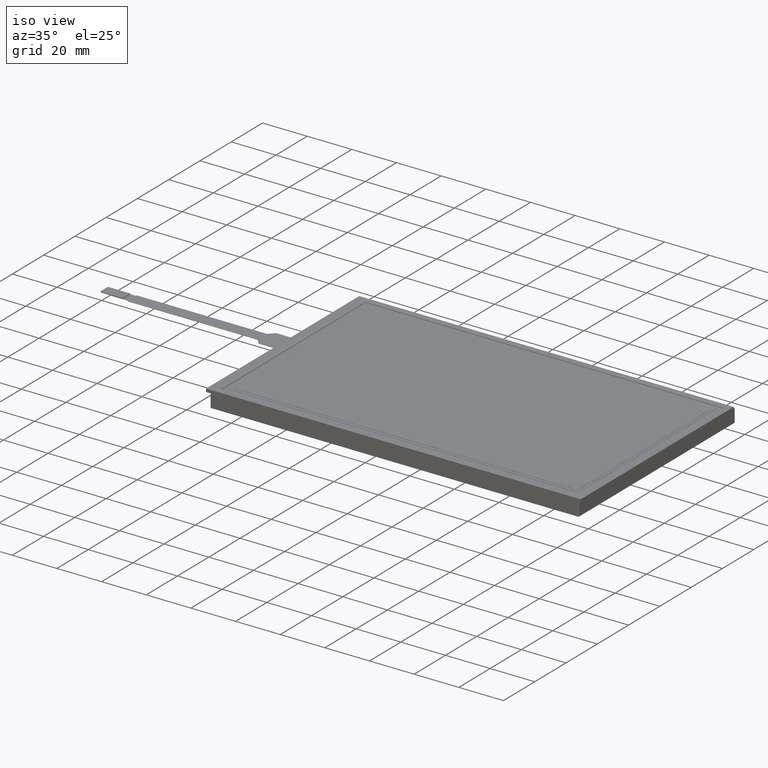
[diagram: clean part render]
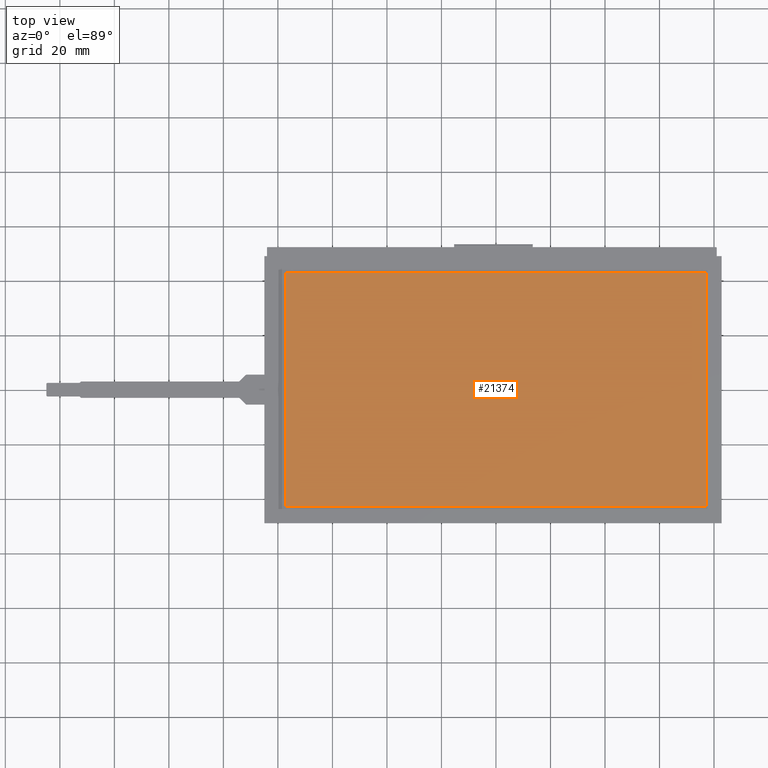
[diagram: tour spotlight — one face highlighted and labeled with its STEP entity id]
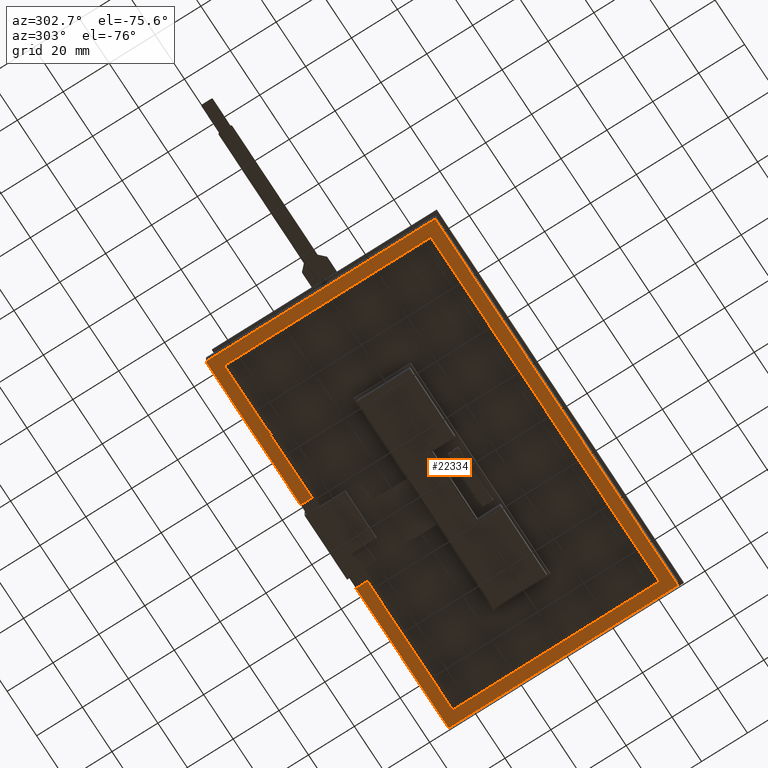
[diagram: tour spotlight — one face highlighted and labeled with its STEP entity id]
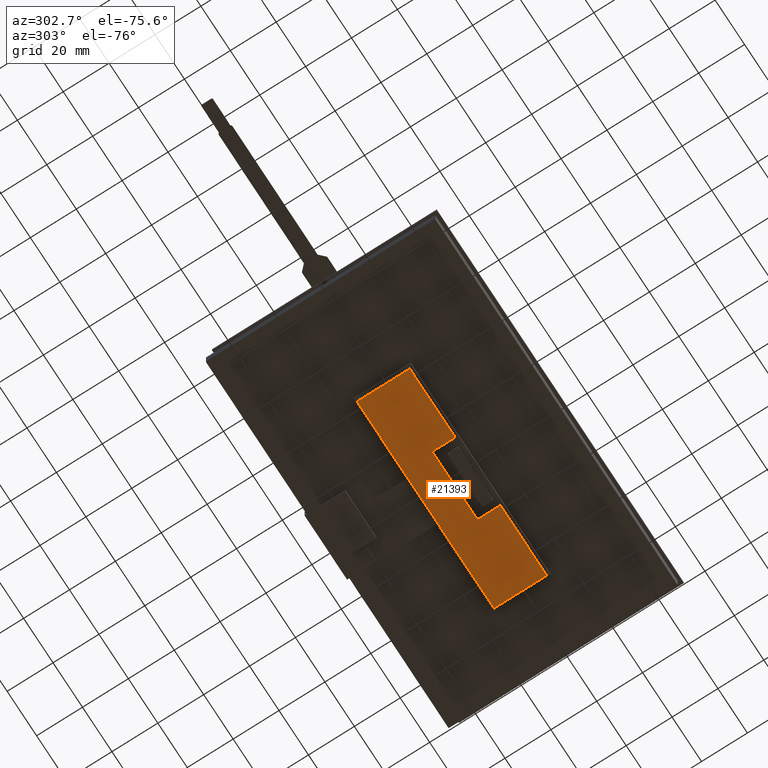
[diagram: tour spotlight — one face highlighted and labeled with its STEP entity id]
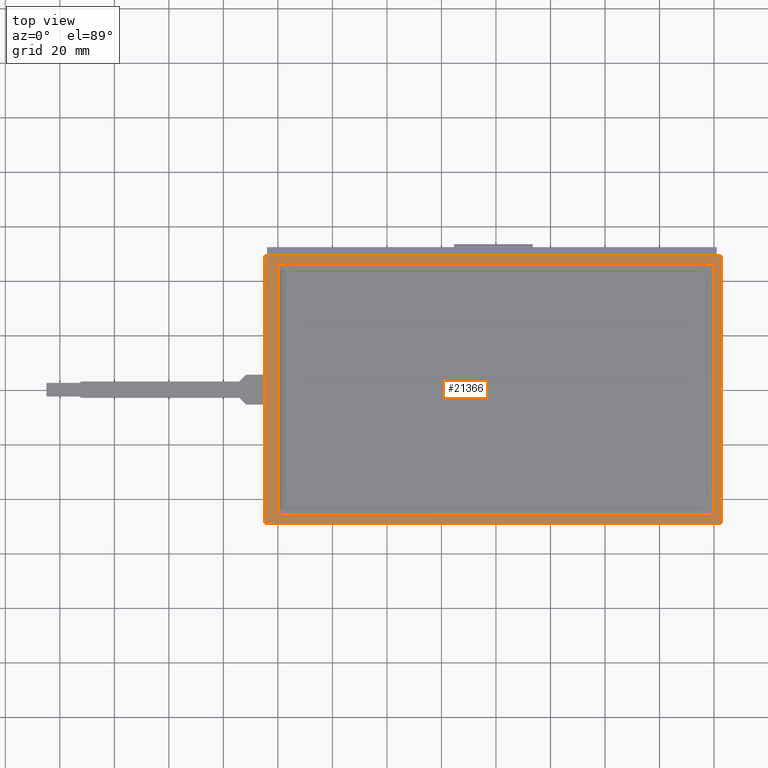
[diagram: tour spotlight — one face highlighted and labeled with its STEP entity id]
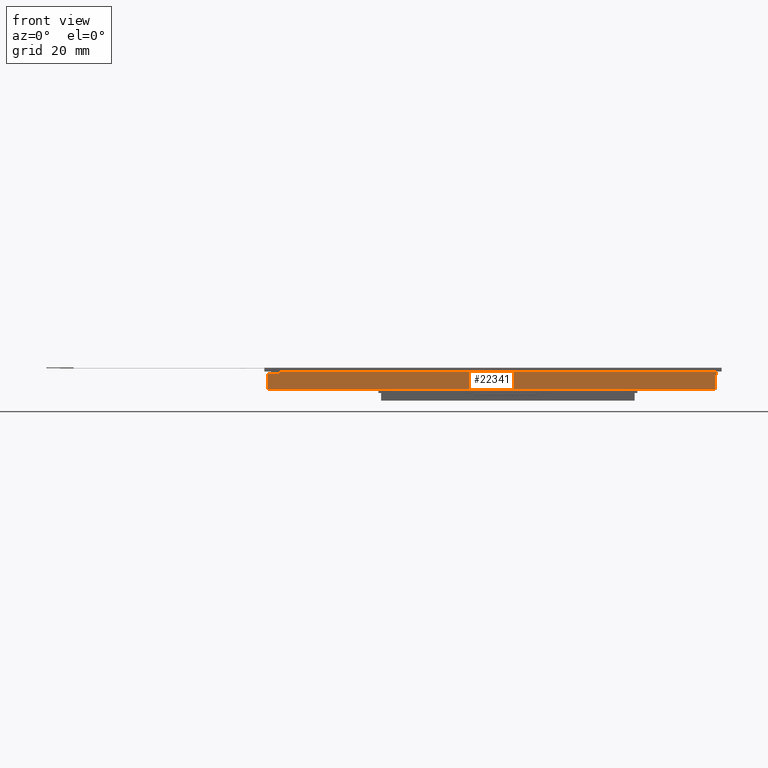
[diagram: tour spotlight — one face highlighted and labeled with its STEP entity id]
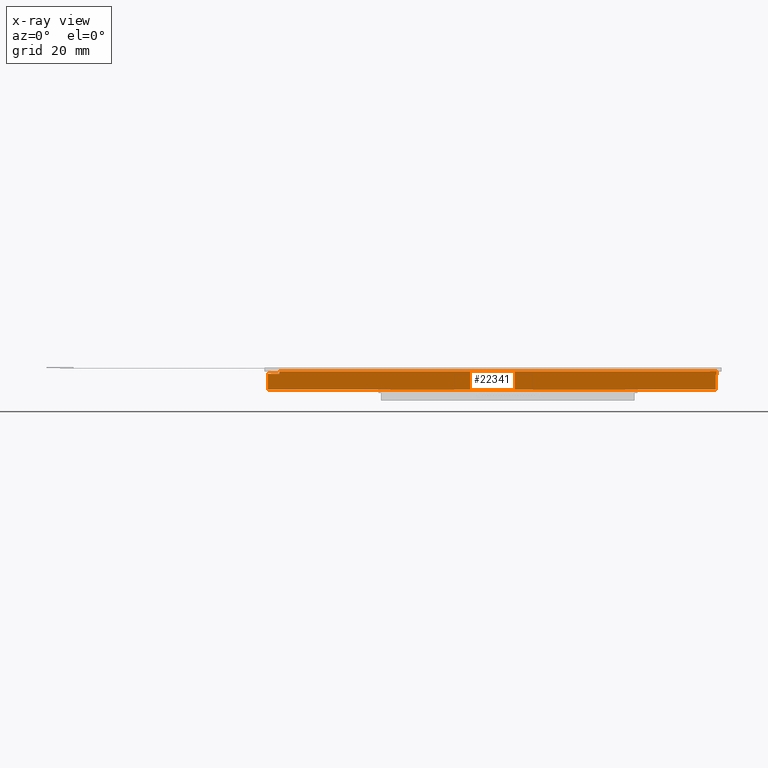
[diagram: x-ray of the same camera — body ghosted, this tour face saturated]
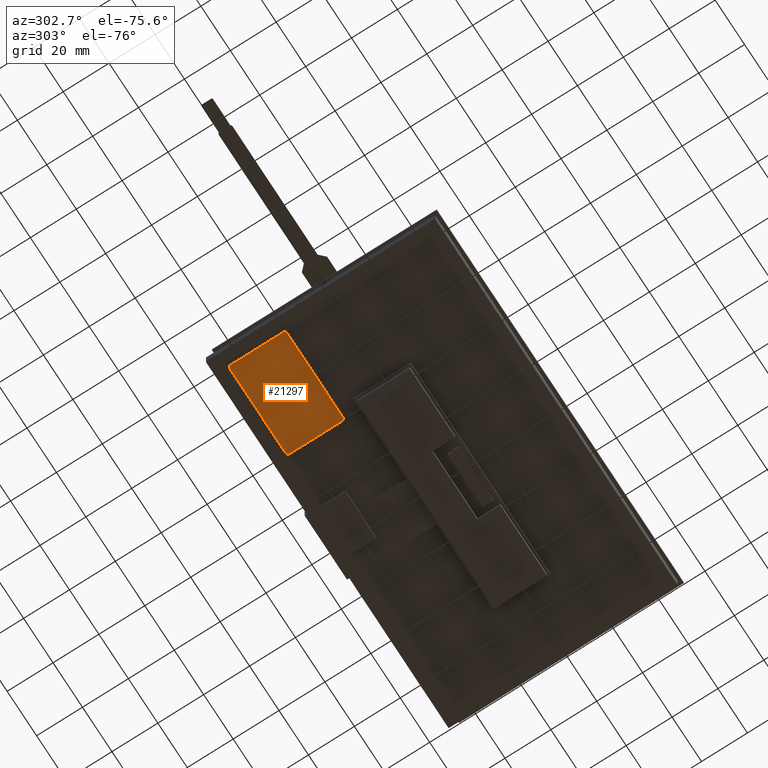
[diagram: tour spotlight — one face highlighted and labeled with its STEP entity id]
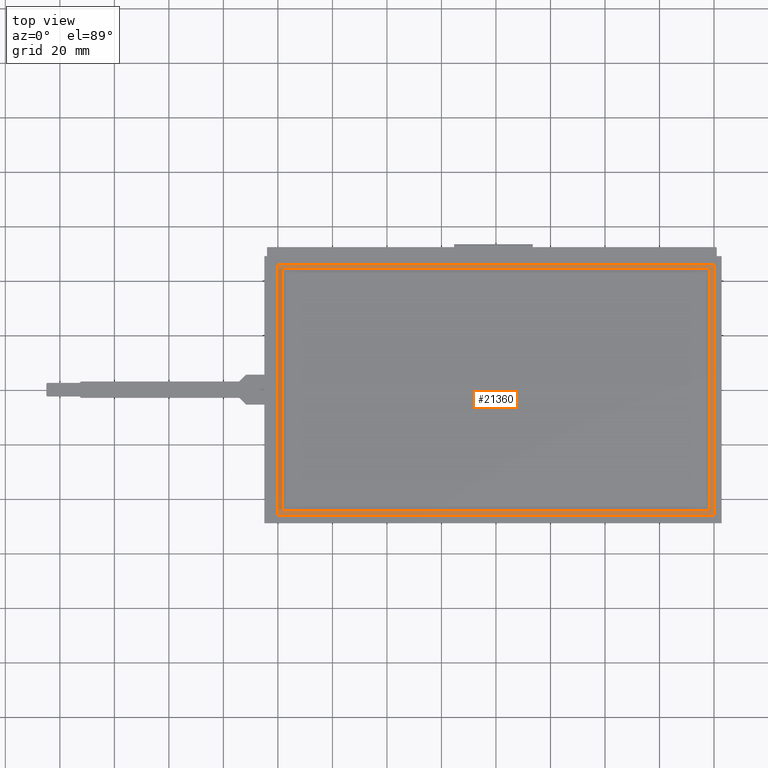
[diagram: tour spotlight — one face highlighted and labeled with its STEP entity id]
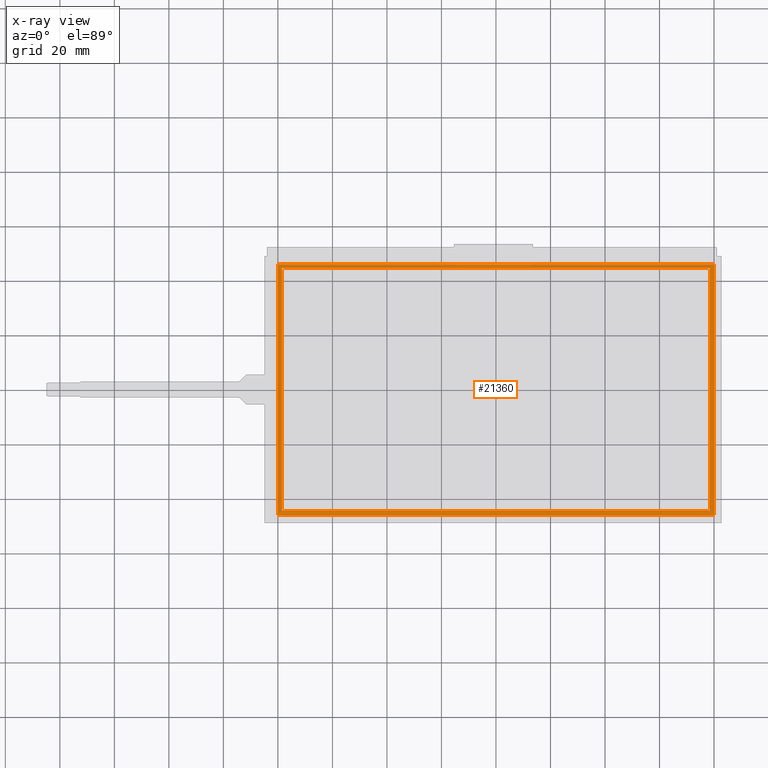
[diagram: x-ray of the same camera — body ghosted, this tour face saturated]
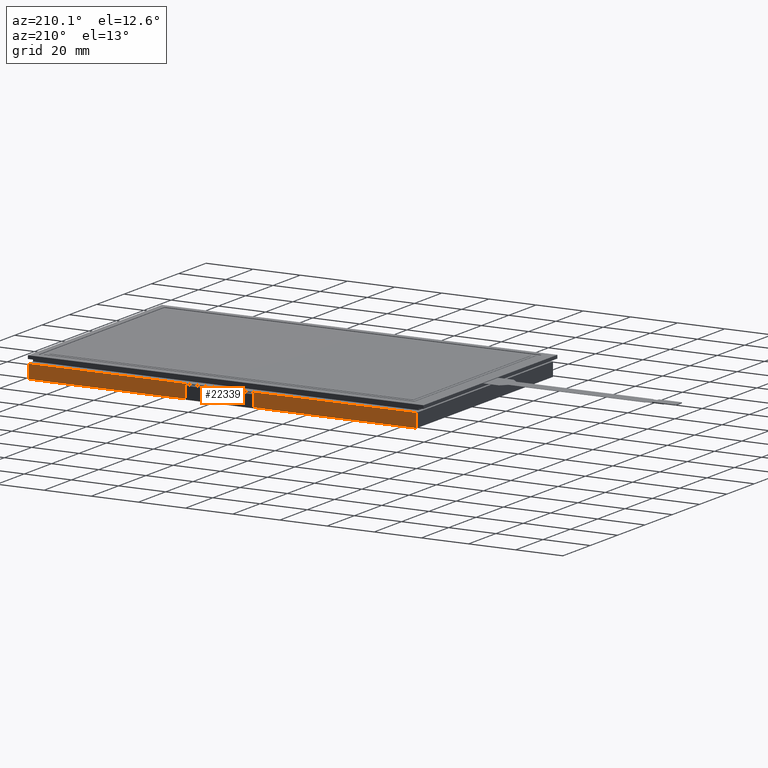
[diagram: tour spotlight — one face highlighted and labeled with its STEP entity id]
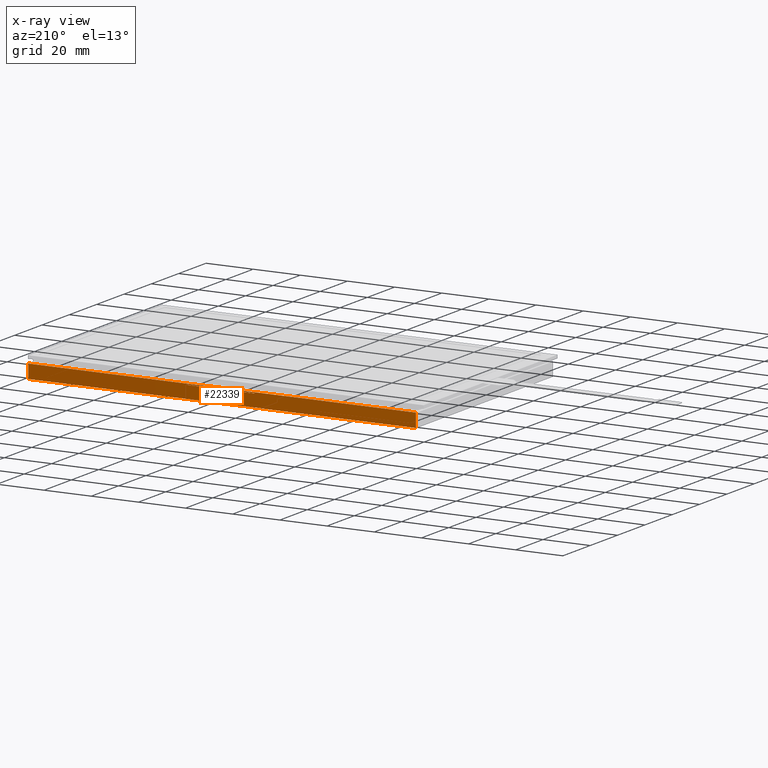
[diagram: x-ray of the same camera — body ghosted, this tour face saturated]
A machine part: a face-by-face anatomy tour. The part has 1136 B-rep faces; the first image is the clean iso view, then the 8 largest visible faces are spotlighted one at a time (largest first), each with its STEP entity span.

Face 1 — top view, entity #21374. In plain terms, the highlighted planar face has unit normal (0, 0, 1).
Definition (entity closure, byte-faithful):
#894=FACE_OUTER_BOUND('',#2040,.T.);
#2040=EDGE_LOOP('',(#14514,#14515,#14516,#14517));
#3393=LINE('',#30537,#6137);
#3397=LINE('',#30545,#6141);
#3400=LINE('',#30551,#6144);
#3403=LINE('',#30556,#6147);
#6137=VECTOR('',#24530,10.);
#6141=VECTOR('',#24536,10.);
#6144=VECTOR('',#24541,10.);
#6147=VECTOR('',#24546,10.);
#8823=VERTEX_POINT('',#30535);
#8824=VERTEX_POINT('',#30536);
#8827=VERTEX_POINT('',#30544);
#8829=VERTEX_POINT('',#30550);
#11006=EDGE_CURVE('',#8823,#8824,#3393,.T.);
#11010=EDGE_CURVE('',#8827,#8823,#3397,.T.);
#11013=EDGE_CURVE('',#8829,#8827,#3400,.T.);
#11016=EDGE_CURVE('',#8824,#8829,#3403,.T.);
#14514=ORIENTED_EDGE('',*,*,#11006,.T.);
#14515=ORIENTED_EDGE('',*,*,#11016,.T.);
#14516=ORIENTED_EDGE('',*,*,#11013,.T.);
#14517=ORIENTED_EDGE('',*,*,#11010,.T.);
#20442=PLANE('',#22564);
#21374=ADVANCED_FACE('',(#894),#20442,.T.);
#22564=AXIS2_PLACEMENT_3D('',#30584,#24578,#24579);
#24530=DIRECTION('',(1.,-1.20708053394536E-49,0.));
#24536=DIRECTION('',(-1.20708053394536E-49,-1.,0.));
#24541=DIRECTION('',(-1.,1.20708053394536E-49,0.));
#24546=DIRECTION('',(1.20708053394536E-49,1.,0.));
#24578=DIRECTION('center_axis',(0.,0.,1.));
#24579=DIRECTION('ref_axis',(1.,-1.20708053394536E-49,0.));
#30535=CARTESIAN_POINT('',(-77.1,-42.96,0.));
#30536=CARTESIAN_POINT('',(77.1,-42.96,0.));
#30537=CARTESIAN_POINT('',(-39.0875,-42.96,0.));
#30544=CARTESIAN_POINT('',(-77.1,42.96,0.));
#30545=CARTESIAN_POINT('',(-77.1,21.48,0.));
#30550=CARTESIAN_POINT('',(77.1,42.96,0.));
#30551=CARTESIAN_POINT('',(38.0125,42.96,0.));
#30556=CARTESIAN_POINT('',(77.1,-21.48,0.));
#30584=CARTESIAN_POINT('Origin',(-1.07499999999999,-4.44089209850063E-15,
0.));

Face 2 — auxiliary view, entity #22334. In plain terms, the highlighted planar face has unit normal (0, -0, -1).
Definition (entity closure, byte-faithful):
#143=CIRCLE('',#22566,0.330000000000005);
#470=CIRCLE('',#23952,0.33);
#471=CIRCLE('',#23953,0.329999999999997);
#472=CIRCLE('',#23954,0.329999999999997);
#1854=FACE_OUTER_BOUND('',#3066,.T.);
#3066=EDGE_LOOP('',(#19966,#19967,#19968,#19969,#19970,#19971,#19972,#19973,
#19974,#19975,#19976,#19977,#19978,#19979,#19980,#19981));
#3257=LINE('',#30220,#6001);
#5710=LINE('',#36031,#8454);
#5713=LINE('',#36037,#8457);
#5716=LINE('',#36043,#8460);
#5719=LINE('',#36049,#8463);
#5722=LINE('',#36055,#8466);
#5725=LINE('',#36061,#8469);
#5728=LINE('',#36067,#8472);
#5730=LINE('',#36071,#8474);
#5731=LINE('',#36073,#8475);
#5732=LINE('',#36076,#8476);
#5733=LINE('',#36080,#8477);
#6001=VECTOR('',#24244,10.);
#8454=VECTOR('',#29633,10.);
#8457=VECTOR('',#29638,10.);
#8460=VECTOR('',#29643,10.);
#8463=VECTOR('',#29648,10.);
#8466=VECTOR('',#29653,10.);
#8469=VECTOR('',#29658,10.);
#8472=VECTOR('',#29663,10.);
#8474=VECTOR('',#29667,10.);
#8475=VECTOR('',#29668,10.);
#8476=VECTOR('',#29671,10.);
#8477=VECTOR('',#29674,10.);
#8717=VERTEX_POINT('',#30217);
#8718=VERTEX_POINT('',#30219);
#8836=VERTEX_POINT('',#30586);
#10607=VERTEX_POINT('',#36028);
#10608=VERTEX_POINT('',#36030);
#10610=VERTEX_POINT('',#36036);
#10612=VERTEX_POINT('',#36042);
#10614=VERTEX_POINT('',#36048);
#10616=VERTEX_POINT('',#36054);
#10618=VERTEX_POINT('',#36060);
#10620=VERTEX_POINT('',#36066);
#10621=VERTEX_POINT('',#36070);
#10622=VERTEX_POINT('',#36072);
#10623=VERTEX_POINT('',#36075);
#10624=VERTEX_POINT('',#36077);
#10625=VERTEX_POINT('',#36079);
#10849=EDGE_CURVE('',#8718,#8717,#3257,.T.);
#11031=EDGE_CURVE('',#8717,#8836,#143,.T.);
#13750=EDGE_CURVE('',#10608,#10607,#5710,.T.);
#13753=EDGE_CURVE('',#10610,#10608,#5713,.T.);
#13756=EDGE_CURVE('',#10612,#10610,#5716,.T.);
#13759=EDGE_CURVE('',#10614,#10612,#5719,.T.);
#13762=EDGE_CURVE('',#10616,#10614,#5722,.T.);
#13765=EDGE_CURVE('',#10618,#10616,#5725,.T.);
#13768=EDGE_CURVE('',#10620,#10618,#5728,.T.);
#13770=EDGE_CURVE('',#10621,#10620,#5730,.T.);
#13771=EDGE_CURVE('',#10607,#10622,#5731,.T.);
#13772=EDGE_CURVE('',#10622,#8718,#470,.T.);
#13773=EDGE_CURVE('',#8836,#10623,#5732,.T.);
#13774=EDGE_CURVE('',#10623,#10624,#471,.T.);
#13775=EDGE_CURVE('',#10624,#10625,#5733,.T.);
#13776=EDGE_CURVE('',#10625,#10621,#472,.T.);
#19966=ORIENTED_EDGE('',*,*,#13770,.T.);
#19967=ORIENTED_EDGE('',*,*,#13768,.T.);
#19968=ORIENTED_EDGE('',*,*,#13765,.T.);
#19969=ORIENTED_EDGE('',*,*,#13762,.T.);
#19970=ORIENTED_EDGE('',*,*,#13759,.T.);
#19971=ORIENTED_EDGE('',*,*,#13756,.T.);
#19972=ORIENTED_EDGE('',*,*,#13753,.T.);
#19973=ORIENTED_EDGE('',*,*,#13750,.T.);
#19974=ORIENTED_EDGE('',*,*,#13771,.T.);
#19975=ORIENTED_EDGE('',*,*,#13772,.T.);
#19976=ORIENTED_EDGE('',*,*,#10849,.T.);
#19977=ORIENTED_EDGE('',*,*,#11031,.T.);
#19978=ORIENTED_EDGE('',*,*,#13773,.T.);
#19979=ORIENTED_EDGE('',*,*,#13774,.T.);
#19980=ORIENTED_EDGE('',*,*,#13775,.T.);
#19981=ORIENTED_EDGE('',*,*,#13776,.T.);
#21201=PLANE('',#23951);
#22334=ADVANCED_FACE('',(#1854),#21201,.T.);
#22566=AXIS2_PLACEMENT_3D('',#30588,#24583,#24584);
#23951=AXIS2_PLACEMENT_3D('',#36069,#29665,#29666);
#23952=AXIS2_PLACEMENT_3D('',#36074,#29669,#29670);
#23953=AXIS2_PLACEMENT_3D('',#36078,#29672,#29673);
#23954=AXIS2_PLACEMENT_3D('',#36081,#29675,#29676);
#24244=DIRECTION('',(-9.09895546683146E-48,-1.,2.46519032881566E-32));
#24583=DIRECTION('center_axis',(0.,-2.46519032881566E-32,-1.));
#24584=DIRECTION('ref_axis',(1.,-9.09895546683146E-48,2.24306570191573E-79));
#29633=DIRECTION('',(9.09895546683146E-48,1.,-2.46519032881566E-32));
#29638=DIRECTION('',(-1.,9.09895546683146E-48,-2.24306570191573E-79));
#29643=DIRECTION('',(9.09895546683146E-48,1.,-2.46519032881566E-32));
#29648=DIRECTION('',(1.,-9.09895546683146E-48,2.24306570191573E-79));
#29653=DIRECTION('',(-9.09895546683146E-48,-1.,2.46519032881566E-32));
#29658=DIRECTION('',(-1.,9.09895546683146E-48,-2.24306570191573E-79));
#29663=DIRECTION('',(-9.09895546683146E-48,-1.,2.46519032881566E-32));
#29665=DIRECTION('center_axis',(0.,-2.46519032881566E-32,-1.));
#29666=DIRECTION('ref_axis',(1.,-9.09895546683146E-48,2.24306570191573E-79));
#29667=DIRECTION('',(1.,-9.09895546683146E-48,2.24306570191573E-79));
#29668=DIRECTION('',(1.,-9.09895546683146E-48,2.24306570191573E-79));
#29669=DIRECTION('center_axis',(0.,-2.46519032881566E-32,-1.));
#29670=DIRECTION('ref_axis',(9.09895546683146E-48,1.,-2.46519032881566E-32));
#29671=DIRECTION('',(-1.,9.09895546683146E-48,-2.24306570191573E-79));
#29672=DIRECTION('center_axis',(0.,-2.46519032881566E-32,-1.));
#29673=DIRECTION('ref_axis',(-1.07657990266678E-13,-1.,2.46519032881566E-32));
#29674=DIRECTION('',(9.09895546683146E-48,1.,-2.46519032881566E-32));
#29675=DIRECTION('center_axis',(0.,-2.46519032881566E-32,-1.));
#29676=DIRECTION('ref_axis',(-1.,9.09895546683146E-48,-2.24306570191573E-79));
#30217=CARTESIAN_POINT('',(80.985,-47.31,-8.08000000000004));
#30219=CARTESIAN_POINT('',(80.985,52.03,-8.08000000000004));
#30220=CARTESIAN_POINT('',(80.985,52.03,-8.08000000000004));
#30586=CARTESIAN_POINT('',(80.655,-47.64,-8.08000000000004));
#30588=CARTESIAN_POINT('Origin',(80.655,-47.31,-8.08000000000004));
#36028=CARTESIAN_POINT('',(18.06,52.36,-8.08000000000004));
#36030=CARTESIAN_POINT('',(18.06,47.36,-8.08000000000004));
#36031=CARTESIAN_POINT('',(18.06,47.36,-8.08000000000004));
#36036=CARTESIAN_POINT('',(75.9850000000209,47.36,-8.08000000000004));
#36037=CARTESIAN_POINT('',(75.9850000000209,47.36,-8.08000000000004));
#36042=CARTESIAN_POINT('',(75.9850000000209,-42.64,-8.08000000000004));
#36043=CARTESIAN_POINT('',(75.9850000000209,-42.64,-8.08000000000004));
#36048=CARTESIAN_POINT('',(-79.0149999999791,-42.64,-8.08000000000004));
#36049=CARTESIAN_POINT('',(-79.0149999999791,-42.64,-8.08000000000004));
#36054=CARTESIAN_POINT('',(-79.0149999999791,47.36,-8.08000000000004));
#36055=CARTESIAN_POINT('',(-79.0149999999791,47.36,-8.08000000000004));
#36060=CARTESIAN_POINT('',(-19.52,47.36,-8.08000000000004));
#36061=CARTESIAN_POINT('',(75.9850000000209,47.36,-8.08000000000004));
#36066=CARTESIAN_POINT('',(-19.52,52.36,-8.08000000000004));
#36067=CARTESIAN_POINT('',(-19.52,52.36,-8.08000000000004));
#36069=CARTESIAN_POINT('Origin',(-1.51499999999999,2.36,-8.08000000000004));
#36070=CARTESIAN_POINT('',(-83.685,52.36,-8.08000000000004));
#36071=CARTESIAN_POINT('',(-83.685,52.36,-8.08000000000004));
#36072=CARTESIAN_POINT('',(80.655,52.36,-8.08000000000004));
#36073=CARTESIAN_POINT('',(-83.685,52.36,-8.08000000000004));
#36074=CARTESIAN_POINT('Origin',(80.655,52.03,-8.08000000000004));
#36075=CARTESIAN_POINT('',(-83.685,-47.64,-8.08000000000004));
#36076=CARTESIAN_POINT('',(80.655,-47.64,-8.08000000000004));
#36077=CARTESIAN_POINT('',(-84.015,-47.31,-8.08000000000004));
#36078=CARTESIAN_POINT('Origin',(-83.685,-47.31,-8.08000000000004));
#36079=CARTESIAN_POINT('',(-84.015,52.03,-8.08000000000004));
#36080=CARTESIAN_POINT('',(-84.015,-47.31,-8.08000000000004));
#36081=CARTESIAN_POINT('Origin',(-83.685,52.03,-8.08000000000004));

Face 3 — auxiliary view, entity #21393. In plain terms, the highlighted planar face has unit normal (0, 0, 1).
Definition (entity closure, byte-faithful):
#913=FACE_OUTER_BOUND('',#2059,.T.);
#2059=EDGE_LOOP('',(#14598,#14599,#14600,#14601,#14602,#14603,#14604,#14605));
#3436=LINE('',#30645,#6180);
#3441=LINE('',#30655,#6185);
#3447=LINE('',#30666,#6191);
#3450=LINE('',#30672,#6194);
#3453=LINE('',#30678,#6197);
#3456=LINE('',#30684,#6200);
#3459=LINE('',#30690,#6203);
#3461=LINE('',#30693,#6205);
#6180=VECTOR('',#24639,1000.);
#6185=VECTOR('',#24646,1000.);
#6191=VECTOR('',#24654,1000.);
#6194=VECTOR('',#24659,1000.);
#6197=VECTOR('',#24664,1000.);
#6200=VECTOR('',#24669,1000.);
#6203=VECTOR('',#24674,1000.);
#6205=VECTOR('',#24678,1000.);
#8855=VERTEX_POINT('',#30642);
#8856=VERTEX_POINT('',#30644);
#8860=VERTEX_POINT('',#30653);
#8864=VERTEX_POINT('',#30664);
#8866=VERTEX_POINT('',#30670);
#8868=VERTEX_POINT('',#30676);
#8870=VERTEX_POINT('',#30682);
#8872=VERTEX_POINT('',#30688);
#11058=EDGE_CURVE('',#8856,#8855,#3436,.T.);
#11063=EDGE_CURVE('',#8855,#8860,#3441,.T.);
#11069=EDGE_CURVE('',#8860,#8864,#3447,.T.);
#11072=EDGE_CURVE('',#8864,#8866,#3450,.T.);
#11075=EDGE_CURVE('',#8866,#8868,#3453,.T.);
#11078=EDGE_CURVE('',#8868,#8870,#3456,.T.);
#11081=EDGE_CURVE('',#8870,#8872,#3459,.T.);
#11083=EDGE_CURVE('',#8872,#8856,#3461,.T.);
#14598=ORIENTED_EDGE('',*,*,#11058,.T.);
#14599=ORIENTED_EDGE('',*,*,#11063,.T.);
#14600=ORIENTED_EDGE('',*,*,#11069,.T.);
#14601=ORIENTED_EDGE('',*,*,#11072,.T.);
#14602=ORIENTED_EDGE('',*,*,#11075,.T.);
#14603=ORIENTED_EDGE('',*,*,#11078,.T.);
#14604=ORIENTED_EDGE('',*,*,#11081,.T.);
#14605=ORIENTED_EDGE('',*,*,#11083,.T.);
#20456=PLANE('',#22592);
#21393=ADVANCED_FACE('',(#913),#20456,.F.);
#22592=AXIS2_PLACEMENT_3D('',#30694,#24679,#24680);
#24639=DIRECTION('',(9.09895546683146E-48,1.,-2.46519032881566E-32));
#24646=DIRECTION('',(1.,-4.66323515047529E-18,1.14957621939449E-49));
#24654=DIRECTION('',(-1.88556899562696E-17,-1.,2.46519032881566E-32));
#24659=DIRECTION('',(-1.,-1.10176149633332E-16,2.71605178542238E-48));
#24664=DIRECTION('',(9.09895546683146E-48,1.,-2.46519032881566E-32));
#24669=DIRECTION('',(-1.,9.09895546683146E-48,-2.24306570191573E-79));
#24674=DIRECTION('',(-9.09895546683146E-48,-1.,2.46519032881566E-32));
#24678=DIRECTION('',(-1.,1.12607820576231E-16,-2.77599710233534E-48));
#24679=DIRECTION('center_axis',(0.,2.46519032881566E-32,1.));
#24680=DIRECTION('ref_axis',(-1.,9.09895546683146E-48,-2.24306570191573E-79));
#30642=CARTESIAN_POINT('',(-42.125,13.27,-12.08));
#30644=CARTESIAN_POINT('',(-42.125,-9.73000000000003,-12.08));
#30645=CARTESIAN_POINT('',(-42.125,13.27,-12.08));
#30653=CARTESIAN_POINT('',(50.875,13.27,-12.08));
#30655=CARTESIAN_POINT('',(50.875,13.27,-12.08));
#30664=CARTESIAN_POINT('',(50.875,-9.73000000000003,-12.08));
#30666=CARTESIAN_POINT('',(50.875,-9.73000000000003,-12.08));
#30670=CARTESIAN_POINT('',(19.3850000000002,-9.73000000000003,-12.08));
#30672=CARTESIAN_POINT('',(19.3850000000002,-9.73000000000003,-12.08));
#30676=CARTESIAN_POINT('',(19.3850000000002,0.269999999999998,-12.08));
#30678=CARTESIAN_POINT('',(19.3850000000002,-9.73000000000003,-12.08));
#30682=CARTESIAN_POINT('',(-11.3150000000005,0.269999999999998,-12.08));
#30684=CARTESIAN_POINT('',(-11.3150000000005,0.269999999999998,-12.08));
#30688=CARTESIAN_POINT('',(-11.3150000000005,-9.73000000000003,-12.08));
#30690=CARTESIAN_POINT('',(-11.3150000000005,-9.73000000000003,-12.08));
#30693=CARTESIAN_POINT('',(-42.125,-9.73000000000003,-12.08));
#30694=CARTESIAN_POINT('Origin',(51.875,14.27,-12.08));

Face 4 — top view, entity #21366. In plain terms, the highlighted planar face has unit normal (0, 0, 1).
Definition (entity closure, byte-faithful):
#703=FACE_BOUND('',#2031,.T.);
#886=FACE_OUTER_BOUND('',#2030,.T.);
#2030=EDGE_LOOP('',(#14458,#14459,#14460,#14461));
#2031=EDGE_LOOP('',(#14462,#14463,#14464,#14465));
#3381=LINE('',#30512,#6125);
#3385=LINE('',#30520,#6129);
#3388=LINE('',#30526,#6132);
#3391=LINE('',#30531,#6135);
#3405=LINE('',#30562,#6149);
#3406=LINE('',#30564,#6150);
#3407=LINE('',#30566,#6151);
#3408=LINE('',#30567,#6152);
#6125=VECTOR('',#24508,10.);
#6129=VECTOR('',#24514,10.);
#6132=VECTOR('',#24519,10.);
#6135=VECTOR('',#24524,10.);
#6149=VECTOR('',#24552,10.);
#6150=VECTOR('',#24553,10.);
#6151=VECTOR('',#24554,10.);
#6152=VECTOR('',#24555,10.);
#8815=VERTEX_POINT('',#30510);
#8816=VERTEX_POINT('',#30511);
#8819=VERTEX_POINT('',#30519);
#8821=VERTEX_POINT('',#30525);
#8831=VERTEX_POINT('',#30560);
#8832=VERTEX_POINT('',#30561);
#8833=VERTEX_POINT('',#30563);
#8834=VERTEX_POINT('',#30565);
#10994=EDGE_CURVE('',#8815,#8816,#3381,.T.);
#10998=EDGE_CURVE('',#8819,#8815,#3385,.T.);
#11001=EDGE_CURVE('',#8821,#8819,#3388,.T.);
#11004=EDGE_CURVE('',#8816,#8821,#3391,.T.);
#11018=EDGE_CURVE('',#8831,#8832,#3405,.T.);
#11019=EDGE_CURVE('',#8832,#8833,#3406,.T.);
#11020=EDGE_CURVE('',#8833,#8834,#3407,.T.);
#11021=EDGE_CURVE('',#8834,#8831,#3408,.T.);
#14458=ORIENTED_EDGE('',*,*,#11018,.T.);
#14459=ORIENTED_EDGE('',*,*,#11019,.T.);
#14460=ORIENTED_EDGE('',*,*,#11020,.T.);
#14461=ORIENTED_EDGE('',*,*,#11021,.T.);
#14462=ORIENTED_EDGE('',*,*,#10994,.T.);
#14463=ORIENTED_EDGE('',*,*,#11004,.T.);
#14464=ORIENTED_EDGE('',*,*,#11001,.T.);
#14465=ORIENTED_EDGE('',*,*,#10998,.T.);
#20434=PLANE('',#22556);
#21366=ADVANCED_FACE('',(#886,#703),#20434,.T.);
#22556=AXIS2_PLACEMENT_3D('',#30559,#24550,#24551);
#24508=DIRECTION('',(1.20708053394536E-49,1.,0.));
#24514=DIRECTION('',(-1.,-1.11022302462516E-16,0.));
#24519=DIRECTION('',(-1.20708053394536E-49,-1.,0.));
#24524=DIRECTION('',(1.,-1.20708053394536E-49,0.));
#24550=DIRECTION('center_axis',(0.,0.,1.));
#24551=DIRECTION('ref_axis',(1.,-1.20708053394536E-49,0.));
#24552=DIRECTION('',(-1.,1.20708053394536E-49,0.));
#24553=DIRECTION('',(-1.20708053394536E-49,-1.,0.));
#24554=DIRECTION('',(1.,1.05893105180343E-16,0.));
#24555=DIRECTION('',(1.81260901979617E-16,1.,0.));
#30510=CARTESIAN_POINT('',(-80.,-46.,0.));
#30511=CARTESIAN_POINT('',(-80.,46.,0.));
#30512=CARTESIAN_POINT('',(-80.,-23.,0.));
#30519=CARTESIAN_POINT('',(80.,-46.,0.));
#30520=CARTESIAN_POINT('',(39.4625,-46.,0.));
#30525=CARTESIAN_POINT('',(80.,46.,0.));
#30526=CARTESIAN_POINT('',(80.,23.,0.));
#30531=CARTESIAN_POINT('',(-40.5375,46.,0.));
#30559=CARTESIAN_POINT('Origin',(-1.07499999999999,-4.44089209850063E-15,
0.));
#30560=CARTESIAN_POINT('',(82.8,49.,0.));
#30561=CARTESIAN_POINT('',(-84.95,49.,0.));
#30562=CARTESIAN_POINT('',(82.8,49.,0.));
#30563=CARTESIAN_POINT('',(-84.95,-49.,0.));
#30564=CARTESIAN_POINT('',(-84.95,49.,0.));
#30565=CARTESIAN_POINT('',(82.8,-49.,0.));
#30566=CARTESIAN_POINT('',(-84.95,-49.,0.));
#30567=CARTESIAN_POINT('',(82.8,-49.,0.));

Face 5 — front view, entity #22341. An x-ray twin of the same camera follows (body ghosted, this face saturated) — the face is partly hidden behind the body. In plain terms, the highlighted planar face has unit normal (-0, -1, 0).
Definition (entity closure, byte-faithful):
#1861=FACE_OUTER_BOUND('',#3085,.T.);
#3085=EDGE_LOOP('',(#20086,#20087,#20088,#20089,#20090,#20091,#20092,#20093));
#3251=LINE('',#30208,#5995);
#3254=LINE('',#30214,#5998);
#3265=LINE('',#30235,#6009);
#3266=LINE('',#30239,#6010);
#3417=LINE('',#30587,#6161);
#5732=LINE('',#36076,#8476);
#5784=LINE('',#36185,#8528);
#5790=LINE('',#36201,#8534);
#5995=VECTOR('',#24236,10.);
#5998=VECTOR('',#24241,10.);
#6009=VECTOR('',#24258,10.);
#6010=VECTOR('',#24263,10.);
#6161=VECTOR('',#24582,1000.);
#8476=VECTOR('',#29671,10.);
#8528=VECTOR('',#29733,1000.);
#8534=VECTOR('',#29753,1000.);
#8712=VERTEX_POINT('',#30205);
#8713=VERTEX_POINT('',#30207);
#8715=VERTEX_POINT('',#30213);
#8722=VERTEX_POINT('',#30233);
#8723=VERTEX_POINT('',#30237);
#8836=VERTEX_POINT('',#30586);
#10623=VERTEX_POINT('',#36075);
#10675=VERTEX_POINT('',#36182);
#10843=EDGE_CURVE('',#8712,#8713,#3251,.T.);
#10846=EDGE_CURVE('',#8713,#8715,#3254,.T.);
#10857=EDGE_CURVE('',#8712,#8722,#3265,.T.);
#10859=EDGE_CURVE('',#8715,#8723,#3266,.T.);
#11030=EDGE_CURVE('',#8836,#8723,#3417,.T.);
#13773=EDGE_CURVE('',#8836,#10623,#5732,.T.);
#13828=EDGE_CURVE('',#10623,#10675,#5784,.T.);
#13836=EDGE_CURVE('',#10675,#8722,#5790,.T.);
#20086=ORIENTED_EDGE('',*,*,#13836,.F.);
#20087=ORIENTED_EDGE('',*,*,#13828,.F.);
#20088=ORIENTED_EDGE('',*,*,#13773,.F.);
#20089=ORIENTED_EDGE('',*,*,#11030,.T.);
#20090=ORIENTED_EDGE('',*,*,#10859,.F.);
#20091=ORIENTED_EDGE('',*,*,#10846,.F.);
#20092=ORIENTED_EDGE('',*,*,#10843,.F.);
#20093=ORIENTED_EDGE('',*,*,#10857,.T.);
#21205=PLANE('',#23964);
#22341=ADVANCED_FACE('',(#1861),#21205,.T.);
#23964=AXIS2_PLACEMENT_3D('',#36200,#29751,#29752);
#24236=DIRECTION('',(1.,-9.09895546683141E-48,0.));
#24241=DIRECTION('',(-2.46519032881566E-31,-4.93038065763133E-32,-1.));
#24258=DIRECTION('',(-2.46519032881566E-31,-4.93038065763133E-32,-1.));
#24263=DIRECTION('',(-1.,9.09895546683142E-48,2.46519032881566E-31));
#24582=DIRECTION('',(0.,2.46519032881566E-32,1.));
#29671=DIRECTION('',(-1.,9.09895546683146E-48,-2.24306570191573E-79));
#29733=DIRECTION('',(0.,2.46519032881566E-32,1.));
#29751=DIRECTION('center_axis',(-9.09895546683146E-48,-1.,2.46519032881566E-32));
#29752=DIRECTION('ref_axis',(0.,2.46519032881566E-32,1.));
#29753=DIRECTION('',(1.,-9.09895546683146E-48,2.24306570191573E-79));
#30205=CARTESIAN_POINT('',(-79.515,-47.64,-1.4));
#30207=CARTESIAN_POINT('',(80.985,-47.64,-1.4));
#30208=CARTESIAN_POINT('',(39.955,-47.64,-1.4));
#30213=CARTESIAN_POINT('',(80.985,-47.64,-2.6));
#30214=CARTESIAN_POINT('',(80.985,-47.64,-1.4));
#30233=CARTESIAN_POINT('',(-79.515,-47.64,-2.27000000000001));
#30235=CARTESIAN_POINT('',(-79.515,-47.64,-1.4));
#30237=CARTESIAN_POINT('',(80.655,-47.64,-2.6));
#30239=CARTESIAN_POINT('',(-79.515,-47.64,-2.6));
#30586=CARTESIAN_POINT('',(80.655,-47.64,-8.08000000000004));
#30587=CARTESIAN_POINT('',(80.655,-47.64,-8.02500000000003));
#36075=CARTESIAN_POINT('',(-83.685,-47.64,-8.08000000000004));
#36076=CARTESIAN_POINT('',(80.655,-47.64,-8.08000000000004));
#36182=CARTESIAN_POINT('',(-83.685,-47.64,-2.27000000000001));
#36185=CARTESIAN_POINT('',(-83.685,-47.64,-8.02500000000003));
#36200=CARTESIAN_POINT('Origin',(80.655,-47.64,-8.02500000000003));
#36201=CARTESIAN_POINT('',(80.655,-47.64,-2.27000000000001));

Face 6 — auxiliary view, entity #21297. In plain terms, the highlighted planar face has unit normal (0, -0, -1).
Definition (entity closure, byte-faithful):
#114=CIRCLE('',#22458,1.);
#116=CIRCLE('',#22461,1.);
#117=CIRCLE('',#22462,1.);
#118=CIRCLE('',#22463,1.);
#817=FACE_OUTER_BOUND('',#1958,.T.);
#1958=EDGE_LOOP('',(#14101,#14102,#14103,#14104,#14105,#14106,#14107,#14108));
#3227=LINE('',#30147,#5971);
#3228=LINE('',#30151,#5972);
#3229=LINE('',#30155,#5973);
#3230=LINE('',#30158,#5974);
#5971=VECTOR('',#24182,10.);
#5972=VECTOR('',#24185,10.);
#5973=VECTOR('',#24188,10.);
#5974=VECTOR('',#24191,10.);
#8687=VERTEX_POINT('',#30137);
#8688=VERTEX_POINT('',#30138);
#8691=VERTEX_POINT('',#30146);
#8692=VERTEX_POINT('',#30148);
#8693=VERTEX_POINT('',#30150);
#8694=VERTEX_POINT('',#30152);
#8695=VERTEX_POINT('',#30154);
#8696=VERTEX_POINT('',#30156);
#10809=EDGE_CURVE('',#8687,#8688,#114,.T.);
#10813=EDGE_CURVE('',#8691,#8687,#3227,.T.);
#10814=EDGE_CURVE('',#8692,#8691,#116,.T.);
#10815=EDGE_CURVE('',#8693,#8692,#3228,.T.);
#10816=EDGE_CURVE('',#8694,#8693,#117,.T.);
#10817=EDGE_CURVE('',#8695,#8694,#3229,.T.);
#10818=EDGE_CURVE('',#8696,#8695,#118,.T.);
#10819=EDGE_CURVE('',#8688,#8696,#3230,.T.);
#14101=ORIENTED_EDGE('',*,*,#10809,.F.);
#14102=ORIENTED_EDGE('',*,*,#10813,.F.);
#14103=ORIENTED_EDGE('',*,*,#10814,.F.);
#14104=ORIENTED_EDGE('',*,*,#10815,.F.);
#14105=ORIENTED_EDGE('',*,*,#10816,.F.);
#14106=ORIENTED_EDGE('',*,*,#10817,.F.);
#14107=ORIENTED_EDGE('',*,*,#10818,.F.);
#14108=ORIENTED_EDGE('',*,*,#10819,.F.);
#20378=PLANE('',#22460);
#21297=ADVANCED_FACE('',(#817),#20378,.T.);
#22458=AXIS2_PLACEMENT_3D('',#30139,#24174,#24175);
#22460=AXIS2_PLACEMENT_3D('',#30145,#24180,#24181);
#22461=AXIS2_PLACEMENT_3D('',#30149,#24183,#24184);
#22462=AXIS2_PLACEMENT_3D('',#30153,#24186,#24187);
#22463=AXIS2_PLACEMENT_3D('',#30157,#24189,#24190);
#24174=DIRECTION('center_axis',(-5.64452336999058E-33,2.46519032881566E-32,
1.));
#24175=DIRECTION('ref_axis',(-0.707106781186548,-0.707106781186547,1.34402472327242E-32));
#24180=DIRECTION('center_axis',(5.64452336999058E-33,-2.46519032881566E-32,
-1.));
#24181=DIRECTION('ref_axis',(-1.,2.22044604925031E-16,-5.64452336999058E-33));
#24182=DIRECTION('',(1.33226762955019E-16,-1.,2.46519032881566E-32));
#24183=DIRECTION('center_axis',(-5.64452336999058E-33,2.46519032881566E-32,
1.));
#24184=DIRECTION('ref_axis',(-0.707106781186547,0.707106781186548,-2.14228087356968E-32));
#24185=DIRECTION('',(-1.,0.,-5.64452336999058E-33));
#24186=DIRECTION('center_axis',(-5.64452336999058E-33,2.46519032881566E-32,
1.));
#24187=DIRECTION('ref_axis',(0.707106781186548,0.707106781186547,-1.34402472327242E-32));
#24188=DIRECTION('',(4.88498130835069E-16,1.,-2.46519032881566E-32));
#24189=DIRECTION('center_axis',(-5.64452336999058E-33,2.46519032881566E-32,
1.));
#24190=DIRECTION('ref_axis',(0.707106781186549,-0.707106781186546,2.14228087356968E-32));
#24191=DIRECTION('',(1.,-2.22044604925031E-16,5.64452336999058E-33));
#30137=CARTESIAN_POINT('',(-78.0149999999792,22.3600000000001,-8.12500000000003));
#30138=CARTESIAN_POINT('',(-77.0149999999792,21.3600000000001,-8.12500000000003));
#30139=CARTESIAN_POINT('Origin',(-77.0149999999792,22.3600000000001,-8.12500000000003));
#30145=CARTESIAN_POINT('Origin',(-58.0149999999792,33.8600000000001,-8.12500000000003));
#30146=CARTESIAN_POINT('',(-78.0149999999792,45.3600000000001,-8.12500000000003));
#30147=CARTESIAN_POINT('',(-78.0149999999792,46.3600000000001,-8.12500000000003));
#30148=CARTESIAN_POINT('',(-77.0149999999792,46.3600000000001,-8.12500000000003));
#30149=CARTESIAN_POINT('Origin',(-77.0149999999792,45.3600000000001,-8.12500000000003));
#30150=CARTESIAN_POINT('',(-39.0149999999792,46.3600000000001,-8.12500000000003));
#30151=CARTESIAN_POINT('',(-38.0149999999792,46.3600000000001,-8.12500000000003));
#30152=CARTESIAN_POINT('',(-38.0149999999792,45.3600000000001,-8.12500000000003));
#30153=CARTESIAN_POINT('Origin',(-39.0149999999792,45.3600000000001,-8.12500000000003));
#30154=CARTESIAN_POINT('',(-38.0149999999792,22.3600000000001,-8.12500000000003));
#30155=CARTESIAN_POINT('',(-38.0149999999792,21.3600000000001,-8.12500000000003));
#30156=CARTESIAN_POINT('',(-39.0149999999792,21.3600000000001,-8.12500000000003));
#30157=CARTESIAN_POINT('Origin',(-39.0149999999792,22.3600000000001,-8.12500000000003));
#30158=CARTESIAN_POINT('',(-78.0149999999792,21.3600000000001,-8.12500000000003));

Face 7 — top view, entity #21360. An x-ray twin of the same camera follows (body ghosted, this face saturated) — the face is partly hidden behind the body. In plain terms, the highlighted planar face has unit normal (0, 0, -1).
Definition (entity closure, byte-faithful):
#701=FACE_BOUND('',#2023,.T.);
#880=FACE_OUTER_BOUND('',#2022,.T.);
#2022=EDGE_LOOP('',(#14426,#14427,#14428,#14429));
#2023=EDGE_LOOP('',(#14430,#14431,#14432,#14433));
#3371=LINE('',#30492,#6115);
#3374=LINE('',#30498,#6118);
#3378=LINE('',#30505,#6122);
#3380=LINE('',#30508,#6124);
#3383=LINE('',#30516,#6127);
#3387=LINE('',#30523,#6131);
#3390=LINE('',#30529,#6134);
#3392=LINE('',#30532,#6136);
#6115=VECTOR('',#24490,10.);
#6118=VECTOR('',#24495,10.);
#6122=VECTOR('',#24501,10.);
#6124=VECTOR('',#24505,10.);
#6127=VECTOR('',#24510,10.);
#6131=VECTOR('',#24516,10.);
#6134=VECTOR('',#24521,10.);
#6136=VECTOR('',#24525,10.);
#8809=VERTEX_POINT('',#30489);
#8810=VERTEX_POINT('',#30491);
#8812=VERTEX_POINT('',#30497);
#8814=VERTEX_POINT('',#30503);
#8817=VERTEX_POINT('',#30513);
#8818=VERTEX_POINT('',#30515);
#8820=VERTEX_POINT('',#30521);
#8822=VERTEX_POINT('',#30527);
#10984=EDGE_CURVE('',#8809,#8810,#3371,.T.);
#10987=EDGE_CURVE('',#8810,#8812,#3374,.T.);
#10991=EDGE_CURVE('',#8814,#8809,#3378,.T.);
#10993=EDGE_CURVE('',#8812,#8814,#3380,.T.);
#10996=EDGE_CURVE('',#8817,#8818,#3383,.T.);
#11000=EDGE_CURVE('',#8820,#8817,#3387,.T.);
#11003=EDGE_CURVE('',#8822,#8820,#3390,.T.);
#11005=EDGE_CURVE('',#8818,#8822,#3392,.T.);
#14426=ORIENTED_EDGE('',*,*,#11005,.F.);
#14427=ORIENTED_EDGE('',*,*,#10996,.F.);
#14428=ORIENTED_EDGE('',*,*,#11000,.F.);
#14429=ORIENTED_EDGE('',*,*,#11003,.F.);
#14430=ORIENTED_EDGE('',*,*,#10987,.F.);
#14431=ORIENTED_EDGE('',*,*,#10984,.F.);
#14432=ORIENTED_EDGE('',*,*,#10991,.F.);
#14433=ORIENTED_EDGE('',*,*,#10993,.F.);
#20428=PLANE('',#22550);
#21360=ADVANCED_FACE('',(#880,#701),#20428,.F.);
#22550=AXIS2_PLACEMENT_3D('',#30533,#24526,#24527);
#24490=DIRECTION('',(1.,1.131437477325E-16,0.));
#24495=DIRECTION('',(1.20708053394536E-49,1.,0.));
#24501=DIRECTION('',(1.99590656112388E-16,-1.,0.));
#24505=DIRECTION('',(-1.,1.20708053394536E-49,0.));
#24510=DIRECTION('',(1.20708053394536E-49,1.,0.));
#24516=DIRECTION('',(-1.,-1.11022302462516E-16,0.));
#24521=DIRECTION('',(-1.20708053394536E-49,-1.,0.));
#24525=DIRECTION('',(1.,-1.20708053394536E-49,0.));
#24526=DIRECTION('center_axis',(0.,0.,-1.));
#24527=DIRECTION('ref_axis',(-1.,1.20708053394536E-49,0.));
#30489=CARTESIAN_POINT('',(-78.5,-44.5,-0.2));
#30491=CARTESIAN_POINT('',(78.5,-44.5,-0.2));
#30492=CARTESIAN_POINT('',(78.5,-44.5,-0.2));
#30497=CARTESIAN_POINT('',(78.5,44.5,-0.2));
#30498=CARTESIAN_POINT('',(78.5,44.5,-0.2));
#30503=CARTESIAN_POINT('',(-78.5,44.5,-0.2));
#30505=CARTESIAN_POINT('',(-78.5,-44.5,-0.2));
#30508=CARTESIAN_POINT('',(-78.5,44.5,-0.2));
#30513=CARTESIAN_POINT('',(-80.,-46.,-0.2));
#30515=CARTESIAN_POINT('',(-80.,46.,-0.2));
#30516=CARTESIAN_POINT('',(-80.,46.,-0.2));
#30521=CARTESIAN_POINT('',(80.,-46.,-0.2));
#30523=CARTESIAN_POINT('',(-80.,-46.,-0.2));
#30527=CARTESIAN_POINT('',(80.,46.,-0.2));
#30529=CARTESIAN_POINT('',(80.,-46.,-0.2));
#30532=CARTESIAN_POINT('',(80.,46.,-0.2));
#30533=CARTESIAN_POINT('Origin',(-2.93715277099055E-53,-8.88178419700125E-15,
-0.2));

Face 8 — auxiliary view, entity #22339. An x-ray twin of the same camera follows (body ghosted, this face saturated) — the face is partly hidden behind the body. In plain terms, the highlighted planar face has unit normal (0, 1, -0).
Definition (entity closure, byte-faithful):
#782=FACE_BOUND('',#3083,.T.);
#1859=FACE_OUTER_BOUND('',#3082,.T.);
#3082=EDGE_LOOP('',(#20070,#20071,#20072,#20073,#20074,#20075,#20076,#20077));
#3083=EDGE_LOOP('',(#20078,#20079,#20080,#20081));
#3512=LINE('',#30808,#6256);
#3525=LINE('',#30846,#6269);
#3528=LINE('',#30851,#6272);
#3529=LINE('',#30853,#6273);
#5709=LINE('',#36029,#8453);
#5729=LINE('',#36068,#8473);
#5730=LINE('',#36071,#8474);
#5731=LINE('',#36073,#8475);
#5734=LINE('',#36083,#8478);
#5787=LINE('',#36193,#8531);
#5788=LINE('',#36196,#8532);
#5789=LINE('',#36197,#8533);
#6256=VECTOR('',#24771,10.);
#6269=VECTOR('',#24814,10.);
#6272=VECTOR('',#24819,10.);
#6273=VECTOR('',#24822,10.);
#8453=VECTOR('',#29632,10.);
#8473=VECTOR('',#29664,10.);
#8474=VECTOR('',#29667,10.);
#8475=VECTOR('',#29668,10.);
#8478=VECTOR('',#29679,1000.);
#8531=VECTOR('',#29742,1000.);
#8532=VECTOR('',#29745,1000.);
#8533=VECTOR('',#29746,1000.);
#8914=VERTEX_POINT('',#30805);
#8915=VERTEX_POINT('',#30807);
#8925=VERTEX_POINT('',#30845);
#8926=VERTEX_POINT('',#30849);
#10605=VERTEX_POINT('',#36025);
#10607=VERTEX_POINT('',#36028);
#10619=VERTEX_POINT('',#36064);
#10620=VERTEX_POINT('',#36066);
#10621=VERTEX_POINT('',#36070);
#10622=VERTEX_POINT('',#36072);
#10677=VERTEX_POINT('',#36191);
#10678=VERTEX_POINT('',#36195);
#11140=EDGE_CURVE('',#8915,#8914,#3512,.T.);
#11159=EDGE_CURVE('',#8925,#8915,#3525,.T.);
#11162=EDGE_CURVE('',#8914,#8926,#3528,.T.);
#11163=EDGE_CURVE('',#8926,#8925,#3529,.T.);
#13749=EDGE_CURVE('',#10605,#10607,#5709,.T.);
#13769=EDGE_CURVE('',#10619,#10620,#5729,.T.);
#13770=EDGE_CURVE('',#10621,#10620,#5730,.T.);
#13771=EDGE_CURVE('',#10607,#10622,#5731,.T.);
#13777=EDGE_CURVE('',#10605,#10619,#5734,.T.);
#13832=EDGE_CURVE('',#10621,#10677,#5787,.T.);
#13833=EDGE_CURVE('',#10678,#10677,#5788,.T.);
#13834=EDGE_CURVE('',#10622,#10678,#5789,.T.);
#20070=ORIENTED_EDGE('',*,*,#13833,.F.);
#20071=ORIENTED_EDGE('',*,*,#13834,.F.);
#20072=ORIENTED_EDGE('',*,*,#13771,.F.);
#20073=ORIENTED_EDGE('',*,*,#13749,.F.);
#20074=ORIENTED_EDGE('',*,*,#13777,.T.);
#20075=ORIENTED_EDGE('',*,*,#13769,.T.);
#20076=ORIENTED_EDGE('',*,*,#13770,.F.);
#20077=ORIENTED_EDGE('',*,*,#13832,.T.);
#20078=ORIENTED_EDGE('',*,*,#11140,.T.);
#20079=ORIENTED_EDGE('',*,*,#11162,.T.);
#20080=ORIENTED_EDGE('',*,*,#11163,.T.);
#20081=ORIENTED_EDGE('',*,*,#11159,.T.);
#21204=PLANE('',#23961);
#22339=ADVANCED_FACE('',(#1859,#782),#21204,.T.);
#23961=AXIS2_PLACEMENT_3D('',#36194,#29743,#29744);
#24771=DIRECTION('',(0.,-2.46519032881566E-32,-1.));
#24814=DIRECTION('',(-1.,9.09895546683146E-48,-2.24306570191573E-79));
#24819=DIRECTION('',(1.,-9.09895546683146E-48,2.24306570191573E-79));
#24822=DIRECTION('',(0.,2.46519032881566E-32,1.));
#29632=DIRECTION('',(0.,-2.46519032881566E-32,-1.));
#29664=DIRECTION('',(0.,-2.46519032881566E-32,-1.));
#29667=DIRECTION('',(1.,-9.09895546683146E-48,2.24306570191573E-79));
#29668=DIRECTION('',(1.,-9.09895546683146E-48,2.24306570191573E-79));
#29679=DIRECTION('',(-1.,9.09895546683146E-48,-2.24306570191573E-79));
#29742=DIRECTION('',(0.,2.46519032881566E-32,1.));
#29743=DIRECTION('center_axis',(9.09895546683146E-48,1.,-2.46519032881566E-32));
#29744=DIRECTION('ref_axis',(0.,-2.46519032881566E-32,-1.));
#29745=DIRECTION('',(-1.,9.09895546683146E-48,-2.24306570191573E-79));
#29746=DIRECTION('',(0.,2.46519032881566E-32,1.));
#30805=CARTESIAN_POINT('',(-15.3325,52.36,-2.72999999999901));
#30807=CARTESIAN_POINT('',(-15.3325,52.36,-2.61000000000004));
#30808=CARTESIAN_POINT('',(-15.3325,52.36,-5.52749999999953));
#30845=CARTESIAN_POINT('',(13.4831,52.36,-2.61000000000004));
#30846=CARTESIAN_POINT('',(47.06905,52.36,-2.61000000000004));
#30849=CARTESIAN_POINT('',(13.4831,52.36,-2.72999999999901));
#30851=CARTESIAN_POINT('',(47.06905,52.36,-2.72999999999901));
#30853=CARTESIAN_POINT('',(13.4831,52.36,-5.52749999999953));
#36025=CARTESIAN_POINT('',(18.06,52.36,-8.02500000000003));
#36028=CARTESIAN_POINT('',(18.06,52.36,-8.08000000000004));
#36029=CARTESIAN_POINT('',(18.06,52.36,-8.02500000000003));
#36064=CARTESIAN_POINT('',(-19.52,52.36,-8.02500000000003));
#36066=CARTESIAN_POINT('',(-19.52,52.36,-8.08000000000004));
#36068=CARTESIAN_POINT('',(-19.52,52.36,-8.02500000000003));
#36070=CARTESIAN_POINT('',(-83.685,52.36,-8.08000000000004));
#36071=CARTESIAN_POINT('',(-83.685,52.36,-8.08000000000004));
#36072=CARTESIAN_POINT('',(80.655,52.36,-8.08000000000004));
#36073=CARTESIAN_POINT('',(-83.685,52.36,-8.08000000000004));
#36083=CARTESIAN_POINT('',(80.655,52.36,-8.02500000000003));
#36191=CARTESIAN_POINT('',(-83.685,52.36,-2.27000000000001));
#36193=CARTESIAN_POINT('',(-83.685,52.36,-8.02500000000003));
#36194=CARTESIAN_POINT('Origin',(80.655,52.36,-8.02500000000003));
#36195=CARTESIAN_POINT('',(80.655,52.36,-2.27000000000001));
#36196=CARTESIAN_POINT('',(80.655,52.36,-2.27000000000001));
#36197=CARTESIAN_POINT('',(80.655,52.36,-8.02500000000003));